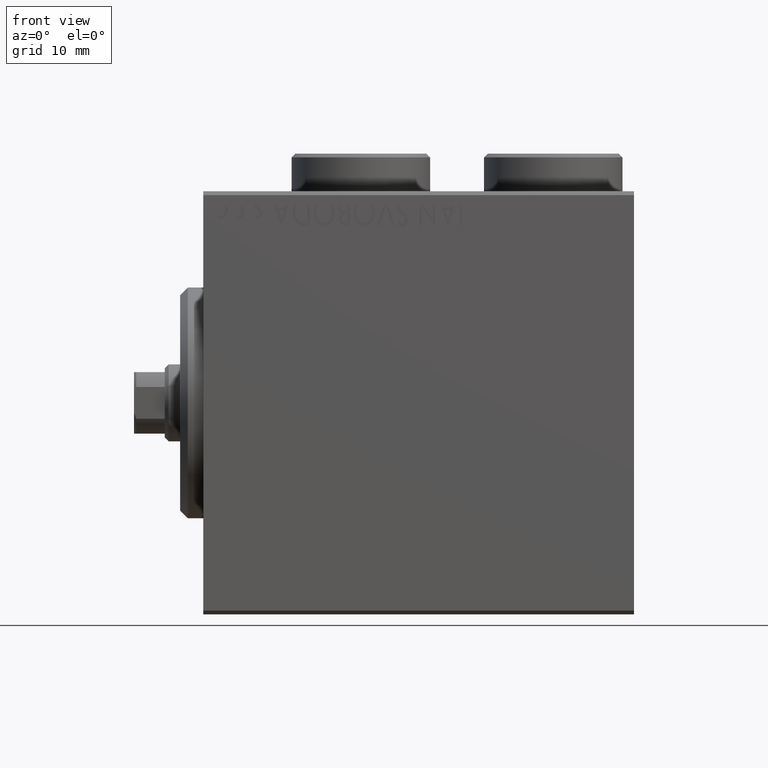
[diagram: clean part render]
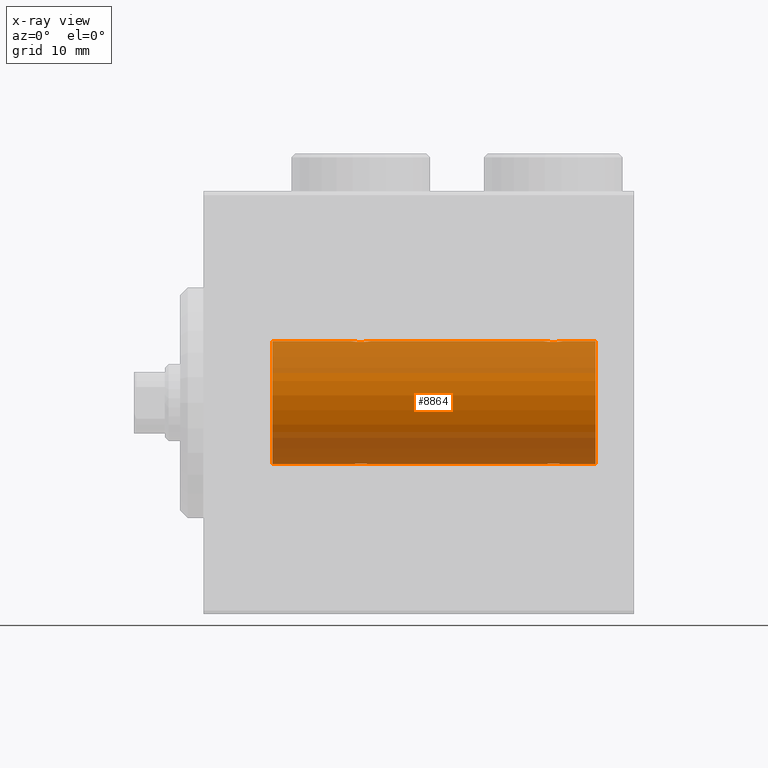
[diagram: x-ray — body ghosted, one internal face saturated and labeled with its STEP entity id]
A machine part, front view, then the same camera in x-ray: the body is ghosted and one INTERNAL B-rep face — a face not visible from any outside direction — is saturated and labeled: STEP entity #8864.
In plain terms, the highlighted cylindrical surface (partial cylindrical patch) has radius 8 mm, axis along (-1, -0, -0).
Its self-contained STEP definition (entity closure, byte-faithful):
#92 = CARTESIAN_POINT ( 'NONE',  ( 19.87056207267771413, -1.092287957405118970, -7.925333492638526600 ) ) ;
#417 = CARTESIAN_POINT ( 'NONE',  ( 44.87056207267771413, -1.092287957405121634, -7.925333492638528377 ) ) ;
#522 = VECTOR ( 'NONE', #37719, 1000.000000000000000 ) ;
#541 = CARTESIAN_POINT ( 'NONE',  ( 21.12714162834985387, -1.084361243153318721, -7.926301147147063908 ) ) ;
#576 = CARTESIAN_POINT ( 'NONE',  ( 46.75000000000000000, 2.184524186358155277E-16, 7.999999999999998224 ) ) ;
#588 = VERTEX_POINT ( 'NONE', #28405 ) ;
#617 = DIRECTION ( 'NONE',  ( 0.000000000000000000, 0.000000000000000000, 1.000000000000000000 ) ) ;
#774 = CARTESIAN_POINT ( 'NONE',  ( 21.75000000000000355, -0.1632520343443068511, -7.999999999999998224 ) ) ;
#1725 = CARTESIAN_POINT ( 'NONE',  ( 21.49841755665748622, -0.7695044314719065026, 7.963745725343518878 ) ) ;
#1793 = AXIS2_PLACEMENT_3D ( 'NONE', #39052, #32373, #617 ) ;
#1833 = ORIENTED_EDGE ( 'NONE', *, *, #44287, .F. ) ;
#2138 = CARTESIAN_POINT ( 'NONE',  ( 44.28284287980513056, -0.3279446529214851691, 7.994696267489722175 ) ) ;
#2713 = CARTESIAN_POINT ( 'NONE',  ( 21.75000000000000355, 9.797173987965608855E-16, -7.999999999999998224 ) ) ;
#2935 = VERTEX_POINT ( 'NONE', #21079 ) ;
#3215 = CARTESIAN_POINT ( 'NONE',  ( 51.00000000000000711, 9.797174393178823685E-16, -7.999999999999998224 ) ) ;
#3259 = CARTESIAN_POINT ( 'NONE',  ( 44.94455374345275800, -1.122809931695426311, 7.920878051565289901 ) ) ;
#3355 = AXIS2_PLACEMENT_3D ( 'NONE', #29902, #22999, #9650 ) ;
#3413 = VECTOR ( 'NONE', #39007, 1000.000000000000000 ) ;
#3454 = DIRECTION ( 'NONE',  ( 0.000000000000000000, 0.000000000000000000, 1.000000000000000000 ) ) ;
#3505 = EDGE_CURVE ( 'NONE', #23674, #41065, #41634, .T. ) ;
#3711 = CARTESIAN_POINT ( 'NONE',  ( 46.26815485876451817, -0.9994562523959094058, 7.938165420771274405 ) ) ;
#3791 = CARTESIAN_POINT ( 'NONE',  ( 51.00000000000000711, 0.000000000000000000, 7.999999999999998224 ) ) ;
#3932 = CARTESIAN_POINT ( 'NONE',  ( 46.49841755665749332, -0.7695044314719045042, 7.963745725343520654 ) ) ;
#4230 = CARTESIAN_POINT ( 'NONE',  ( 20.17298283628253230, -1.217515856520239970, -7.907063872927298398 ) ) ;
#4337 = CARTESIAN_POINT ( 'NONE',  ( 46.32687899779141816, -0.9409612394163474614, -7.944680966683013601 ) ) ;
#4497 = CARTESIAN_POINT ( 'NONE',  ( 19.40749082144729343, -0.6288424646912649241, 7.976670562295706368 ) ) ;
#5036 = EDGE_CURVE ( 'NONE', #10219, #12603, #17463, .T. ) ;
#6054 = EDGE_CURVE ( 'NONE', #7615, #10219, #13730, .T. ) ;
#6769 = CARTESIAN_POINT ( 'NONE',  ( 9.000000000000001776, 9.797174393178823685E-16, -7.999999999999998224 ) ) ;
#7003 = CARTESIAN_POINT ( 'NONE',  ( 21.26267005793691212, -0.9937204387496720859, -7.938174152191990629 ) ) ;
#7461 = CARTESIAN_POINT ( 'NONE',  ( 20.82830666114114848, -1.217212176555599434, -7.907113222863026536 ) ) ;
#7587 = CARTESIAN_POINT ( 'NONE',  ( 19.25000000000000000, -4.052102368803510290E-23, 7.999999999999998224 ) ) ;
#7615 = VERTEX_POINT ( 'NONE', #3215 ) ;
#7788 = CARTESIAN_POINT ( 'NONE',  ( 44.40834966532099060, -0.6303134207468006345, -7.976551562999471656 ) ) ;
#7883 = CARTESIAN_POINT ( 'NONE',  ( 51.00000000000000711, 9.797174393178823685E-16, -7.999999999999998224 ) ) ;
#8222 = CYLINDRICAL_SURFACE ( 'NONE', #1793, 7.999999999999998224 ) ;
#8688 = VERTEX_POINT ( 'NONE', #2713 ) ;
#8864 = ADVANCED_FACE ( 'NONE', ( #14867 ), #8222, .F. ) ;
#9424 = LINE ( 'NONE', #44858, #522 ) ;
#9650 = DIRECTION ( 'NONE',  ( 0.000000000000000000, 0.000000000000000000, 1.000000000000000000 ) ) ;
#10166 = CARTESIAN_POINT ( 'NONE',  ( 45.66440551148901505, -1.250104850332072859, 7.901723728054492746 ) ) ;
#10219 = VERTEX_POINT ( 'NONE', #17986 ) ;
#10328 = CARTESIAN_POINT ( 'NONE',  ( 46.75000000000000000, -0.1632520343443067401, -8.000000000000000000 ) ) ;
#11009 = CARTESIAN_POINT ( 'NONE',  ( 44.25000000000000711, -5.932357478216049125E-15, -7.999999999999998224 ) ) ;
#11133 = CARTESIAN_POINT ( 'NONE',  ( 21.32687899779140750, -0.9409612394163509030, -7.944680966683015377 ) ) ;
#11229 = CARTESIAN_POINT ( 'NONE',  ( 44.50158244334253510, -0.7695044314719126088, -7.963745725343517101 ) ) ;
#11408 = CARTESIAN_POINT ( 'NONE',  ( 19.94455374345276155, -1.122809931695431640, 7.920878051565288125 ) ) ;
#11494 = EDGE_CURVE ( 'NONE', #36284, #588, #34967, .T. ) ;
#12088 = CARTESIAN_POINT ( 'NONE',  ( 19.25000000000000355, -0.1632520343443080724, 8.000000000000000000 ) ) ;
#12603 = VERTEX_POINT ( 'NONE', #23411 ) ;
#12802 = ORIENTED_EDGE ( 'NONE', *, *, #3505, .T. ) ;
#12846 = VECTOR ( 'NONE', #14475, 1000.000000000000000 ) ;
#13730 = LINE ( 'NONE', #31450, #28903 ) ;
#13810 = DIRECTION ( 'NONE',  ( -1.000000000000000000, 0.000000000000000000, 0.000000000000000000 ) ) ;
#13898 = VECTOR ( 'NONE', #26041, 1000.000000000000000 ) ;
#13998 = CARTESIAN_POINT ( 'NONE',  ( 44.25000000000002132, -0.1654128203352934201, -7.999999999999998224 ) ) ;
#14058 = CARTESIAN_POINT ( 'NONE',  ( 46.71666607977186914, -0.3297258132310492140, 7.994620111903504522 ) ) ;
#14475 = DIRECTION ( 'NONE',  ( -1.000000000000000000, -0.000000000000000000, -0.000000000000000000 ) ) ;
#14682 = CARTESIAN_POINT ( 'NONE',  ( 45.66599605016010344, -1.249894643705221853, -7.901756981264364654 ) ) ;
#14737 = CARTESIAN_POINT ( 'NONE',  ( 51.00000000000000711, 0.000000000000000000, 7.999999999999998224 ) ) ;
#14804 = CARTESIAN_POINT ( 'NONE',  ( 19.73184514123549249, -0.9994562523959139577, -7.938165420771276182 ) ) ;
#14867 = FACE_OUTER_BOUND ( 'NONE', #28179, .T. ) ;
#14883 = VERTEX_POINT ( 'NONE', #18342 ) ;
#15310 = CARTESIAN_POINT ( 'NONE',  ( 19.28284287980512346, -0.3279446529214878892, 7.994696267489722175 ) ) ;
#15554 = EDGE_CURVE ( 'NONE', #12603, #8688, #9424, .T. ) ;
#16168 = CARTESIAN_POINT ( 'NONE',  ( 44.40749082144728277, -0.6288424646912613714, 7.976670562295706368 ) ) ;
#16385 = CARTESIAN_POINT ( 'NONE',  ( 44.50041313324088321, -0.7680324342712147034, 7.963892330120037499 ) ) ;
#17108 = ORIENTED_EDGE ( 'NONE', *, *, #25711, .T. ) ;
#17226 = ORIENTED_EDGE ( 'NONE', *, *, #18204, .F. ) ;
#17279 = CARTESIAN_POINT ( 'NONE',  ( 45.33400394983990367, -1.249894643705215858, 7.901756981264366431 ) ) ;
#17463 = B_SPLINE_CURVE_WITH_KNOTS ( 'NONE', 3,
 ( #31263, #10328, #35864, #34950, #45315, #4337, #32173, #35400, #21363, #31942, #14682, #17895, #21134, #417, #31713, #11229, #7788, #45547, #13998, #11009 ),
 .UNSPECIFIED., .F., .F.,
 ( 4, 2, 2, 2, 2, 2, 2, 2, 2, 4 ),
 ( 0.003914068143704942625, 0.004403205918210042168, 0.004892343692715140843, 0.005136912579967698421, 0.005381481467220255999, 0.005870619241725370287, 0.006359757016230484575, 0.006848894790735598863, 0.007338032565240713151, 0.007827170339745828306 ),
 .UNSPECIFIED. ) ;
#17629 = VERTEX_POINT ( 'NONE', #7587 ) ;
#17723 = LINE ( 'NONE', #14737, #25565 ) ;
#17732 = CARTESIAN_POINT ( 'NONE',  ( 46.59165033467900230, -0.6303134207467945282, 7.976551562999473433 ) ) ;
#17895 = CARTESIAN_POINT ( 'NONE',  ( 45.33559448851095652, -1.250104850332078854, -7.901723728054487417 ) ) ;
#17986 = CARTESIAN_POINT ( 'NONE',  ( 46.74999999999999289, 9.797173987957720246E-16, -7.999999999999998224 ) ) ;
#18023 = CARTESIAN_POINT ( 'NONE',  ( 21.59250917855271013, -0.6288424646912625926, -7.976670562295708145 ) ) ;
#18204 = EDGE_CURVE ( 'NONE', #17629, #588, #35327, .T. ) ;
#18342 = CARTESIAN_POINT ( 'NONE',  ( 19.25000000000000711, -3.107364149877583097E-15, -7.999999999999998224 ) ) ;
#18390 = CARTESIAN_POINT ( 'NONE',  ( 51.00000000000000711, 0.000000000000000000, 7.999999999999998224 ) ) ;
#18523 = CARTESIAN_POINT ( 'NONE',  ( 19.50041313324087611, -0.7680324342712183672, 7.963892330120039276 ) ) ;
#18761 = CARTESIAN_POINT ( 'NONE',  ( 20.66440551148902571, -1.250104850332075523, 7.901723728054487417 ) ) ;
#19219 = CARTESIAN_POINT ( 'NONE',  ( 21.12943792732229298, -1.092287957405117194, 7.925333492638531929 ) ) ;
#19759 = CIRCLE ( 'NONE', #45485, 7.999999999999998224 ) ;
#20053 = B_SPLINE_CURVE_WITH_KNOTS ( 'NONE', 3,
 ( #43846, #12088, #15310, #4497, #18523, #22685, #29107, #39941, #11408, #29568, #25422, #18761, #40173, #19219, #36735, #1725, #32804, #32569, #28874, #25194 ),
 .UNSPECIFIED., .F., .F.,
 ( 4, 2, 2, 2, 2, 2, 2, 2, 2, 4 ),
 ( 0.003914068143704968646, 0.004403205918210080332, 0.004892343692715191150, 0.005136912579967747861, 0.005381481467220303704, 0.005870619241725416257, 0.006359757016230527943, 0.006848894790735639629, 0.007338032565240751315, 0.007827170339745863001 ),
 .UNSPECIFIED. ) ;
#20130 = ORIENTED_EDGE ( 'NONE', *, *, #24739, .F. ) ;
#20239 = CARTESIAN_POINT ( 'NONE',  ( 44.25000000000000000, -4.052102368803510290E-23, 7.999999999999998224 ) ) ;
#20642 = VERTEX_POINT ( 'NONE', #34137 ) ;
#20941 = CARTESIAN_POINT ( 'NONE',  ( 51.00000000000000711, 0.000000000000000000, 0.000000000000000000 ) ) ;
#21031 = CARTESIAN_POINT ( 'NONE',  ( 21.75000000000000355, 9.797173987965608855E-16, -7.999999999999998224 ) ) ;
#21079 = CARTESIAN_POINT ( 'NONE',  ( 21.75000000000000355, -5.238855365914187376E-16, 7.999999999999998224 ) ) ;
#21134 = CARTESIAN_POINT ( 'NONE',  ( 45.17298283628253586, -1.217515856520241968, -7.907063872927295733 ) ) ;
#21363 = CARTESIAN_POINT ( 'NONE',  ( 46.05544625654727042, -1.122809931695432972, -7.920878051565292566 ) ) ;
#22685 = CARTESIAN_POINT ( 'NONE',  ( 19.67312100220859605, -0.9409612394163516802, 7.944680966683013601 ) ) ;
#22999 = DIRECTION ( 'NONE',  ( -1.000000000000000000, 0.000000000000000000, 0.000000000000000000 ) ) ;
#23411 = CARTESIAN_POINT ( 'NONE',  ( 44.25000000000000711, -5.932357478216049125E-15, -7.999999999999998224 ) ) ;
#23674 = VERTEX_POINT ( 'NONE', #20239 ) ;
#24189 = ORIENTED_EDGE ( 'NONE', *, *, #11494, .T. ) ;
#24630 = DIRECTION ( 'NONE',  ( -1.000000000000000000, -0.000000000000000000, -0.000000000000000000 ) ) ;
#24739 = EDGE_CURVE ( 'NONE', #7615, #20642, #19759, .T. ) ;
#24936 = CARTESIAN_POINT ( 'NONE',  ( 19.40834966532100481, -0.6303134207467991912, -7.976551562999473433 ) ) ;
#25152 = CARTESIAN_POINT ( 'NONE',  ( 19.28333392022813797, -0.3297258132310537104, -7.994620111903500970 ) ) ;
#25194 = CARTESIAN_POINT ( 'NONE',  ( 21.75000000000000355, -5.238855365914187376E-16, 7.999999999999998224 ) ) ;
#25381 = CARTESIAN_POINT ( 'NONE',  ( 21.05544625654724200, -1.122809931695431640, -7.920878051565290789 ) ) ;
#25422 = CARTESIAN_POINT ( 'NONE',  ( 20.33400394983990722, -1.249894643705219410, 7.901756981264364654 ) ) ;
#25565 = VECTOR ( 'NONE', #24630, 1000.000000000000000 ) ;
#25711 = EDGE_CURVE ( 'NONE', #14883, #36284, #29030, .T. ) ;
#26041 = DIRECTION ( 'NONE',  ( -1.000000000000000000, -0.000000000000000000, -0.000000000000000000 ) ) ;
#26520 = CARTESIAN_POINT ( 'NONE',  ( 44.25000000000000000, -4.052102368803510290E-23, 7.999999999999998224 ) ) ;
#28082 = CARTESIAN_POINT ( 'NONE',  ( 46.75000000000000000, 2.184524186358155277E-16, 7.999999999999998224 ) ) ;
#28179 = EDGE_LOOP ( 'NONE', ( #20130, #34330, #36953, #38245, #30480, #17108, #24189, #17226, #42702, #28770, #12802, #1833 ) ) ;
#28405 = CARTESIAN_POINT ( 'NONE',  ( 9.000000000000001776, 0.000000000000000000, 7.999999999999998224 ) ) ;
#28770 = ORIENTED_EDGE ( 'NONE', *, *, #31338, .F. ) ;
#28874 = CARTESIAN_POINT ( 'NONE',  ( 21.75000000000000711, -0.1654128203352884796, 8.000000000000001776 ) ) ;
#28903 = VECTOR ( 'NONE', #45509, 1000.000000000000000 ) ;
#29030 = LINE ( 'NONE', #7883, #13898 ) ;
#29107 = CARTESIAN_POINT ( 'NONE',  ( 19.73732994206309499, -0.9937204387496718638, 7.938174152191987076 ) ) ;
#29568 = CARTESIAN_POINT ( 'NONE',  ( 20.17169333885885862, -1.217212176555599878, 7.907113222863031865 ) ) ;
#29902 = CARTESIAN_POINT ( 'NONE',  ( 9.000000000000001776, 0.000000000000000000, 0.000000000000000000 ) ) ;
#30480 = ORIENTED_EDGE ( 'NONE', *, *, #37464, .T. ) ;
#31263 = CARTESIAN_POINT ( 'NONE',  ( 46.74999999999999289, 9.797173987957720246E-16, -7.999999999999998224 ) ) ;
#31338 = EDGE_CURVE ( 'NONE', #23674, #2935, #40031, .T. ) ;
#31450 = CARTESIAN_POINT ( 'NONE',  ( 51.00000000000000711, 9.797174393178823685E-16, -7.999999999999998224 ) ) ;
#31619 = CARTESIAN_POINT ( 'NONE',  ( 21.49958686675913810, -0.7680324342712174790, -7.963892330120039276 ) ) ;
#31713 = CARTESIAN_POINT ( 'NONE',  ( 44.73184514123551025, -0.9994562523959168443, -7.938165420771277958 ) ) ;
#31776 = CARTESIAN_POINT ( 'NONE',  ( 44.73732994206308433, -0.9937204387496696434, 7.938174152191987076 ) ) ;
#31942 = CARTESIAN_POINT ( 'NONE',  ( 45.82830666114114848, -1.217212176555600989, -7.907113222863030089 ) ) ;
#32173 = CARTESIAN_POINT ( 'NONE',  ( 46.26267005793690146, -0.9937204387496705316, -7.938174152191988853 ) ) ;
#32373 = DIRECTION ( 'NONE',  ( -1.000000000000000000, -0.000000000000000000, -0.000000000000000000 ) ) ;
#32569 = CARTESIAN_POINT ( 'NONE',  ( 21.71666607977186914, -0.3297258132310516010, 7.994620111903504522 ) ) ;
#32804 = CARTESIAN_POINT ( 'NONE',  ( 21.59165033467900940, -0.6303134207467971928, 7.976551562999473433 ) ) ;
#33668 = CARTESIAN_POINT ( 'NONE',  ( 44.25000000000000000, -0.1632520343443069621, 8.000000000000000000 ) ) ;
#34137 = CARTESIAN_POINT ( 'NONE',  ( 51.00000000000000711, 0.000000000000000000, 7.999999999999998224 ) ) ;
#34330 = ORIENTED_EDGE ( 'NONE', *, *, #6054, .T. ) ;
#34570 = CARTESIAN_POINT ( 'NONE',  ( 44.67312100220858184, -0.9409612394163470173, 7.944680966683011825 ) ) ;
#34950 = CARTESIAN_POINT ( 'NONE',  ( 46.59250917855270302, -0.6288424646912637028, -7.976670562295706368 ) ) ;
#34967 = CIRCLE ( 'NONE', #3355, 7.999999999999998224 ) ;
#35077 = CARTESIAN_POINT ( 'NONE',  ( 19.25000000000000711, -0.1654128203352910609, -7.999999999999998224 ) ) ;
#35327 = LINE ( 'NONE', #3791, #3413 ) ;
#35400 = CARTESIAN_POINT ( 'NONE',  ( 46.12714162834986098, -1.084361243153318943, -7.926301147147065684 ) ) ;
#35529 = CARTESIAN_POINT ( 'NONE',  ( 19.50158244334252089, -0.7695044314719098333, -7.963745725343515325 ) ) ;
#35759 = CARTESIAN_POINT ( 'NONE',  ( 20.33559448851098850, -1.250104850332076634, -7.901723728054487417 ) ) ;
#35864 = CARTESIAN_POINT ( 'NONE',  ( 46.71715712019487654, -0.3279446529214866679, -7.994696267489720398 ) ) ;
#36284 = VERTEX_POINT ( 'NONE', #6769 ) ;
#36735 = CARTESIAN_POINT ( 'NONE',  ( 21.26815485876451461, -0.9994562523959116263, 7.938165420771274405 ) ) ;
#36953 = ORIENTED_EDGE ( 'NONE', *, *, #5036, .T. ) ;
#37464 = EDGE_CURVE ( 'NONE', #8688, #14883, #44447, .T. ) ;
#37719 = DIRECTION ( 'NONE',  ( -1.000000000000000000, -0.000000000000000000, -0.000000000000000000 ) ) ;
#38245 = ORIENTED_EDGE ( 'NONE', *, *, #15554, .T. ) ;
#38524 = CARTESIAN_POINT ( 'NONE',  ( 21.71715712019488009, -0.3279446529214856687, -7.994696267489723951 ) ) ;
#39007 = DIRECTION ( 'NONE',  ( -1.000000000000000000, -0.000000000000000000, -0.000000000000000000 ) ) ;
#39052 = CARTESIAN_POINT ( 'NONE',  ( 51.00000000000000711, 0.000000000000000000, 0.000000000000000000 ) ) ;
#39208 = CARTESIAN_POINT ( 'NONE',  ( 19.25000000000000711, -3.107364149877583097E-15, -7.999999999999998224 ) ) ;
#39941 = CARTESIAN_POINT ( 'NONE',  ( 19.87285837165014613, -1.084361243153319387, 7.926301147147063908 ) ) ;
#40031 = LINE ( 'NONE', #18390, #12846 ) ;
#40173 = CARTESIAN_POINT ( 'NONE',  ( 20.82701716371747480, -1.217515856520238637, 7.907063872927298398 ) ) ;
#41065 = VERTEX_POINT ( 'NONE', #576 ) ;
#41634 = B_SPLINE_CURVE_WITH_KNOTS ( 'NONE', 3,
 ( #26520, #33668, #2138, #16168, #16385, #34570, #31776, #42143, #3259, #41918, #17279, #10166, #41690, #45152, #3711, #3932, #17732, #14058, #42380, #28082 ),
 .UNSPECIFIED., .F., .F.,
 ( 4, 2, 2, 2, 2, 2, 2, 2, 2, 4 ),
 ( 0.003914068143704962574, 0.004403205918210084668, 0.004892343692715206763, 0.005136912579967760871, 0.005381481467220314979, 0.005870619241725421461, 0.006359757016230529678, 0.006848894790735636159, 0.007338032565240744376, 0.007827170339745850858 ),
 .UNSPECIFIED. ) ;
#41681 = EDGE_CURVE ( 'NONE', #17629, #2935, #20053, .T. ) ;
#41690 = CARTESIAN_POINT ( 'NONE',  ( 45.82701716371747125, -1.217515856520235973, 7.907063872927300174 ) ) ;
#41918 = CARTESIAN_POINT ( 'NONE',  ( 45.17169333885885152, -1.217212176555594771, 7.907113222863028312 ) ) ;
#42143 = CARTESIAN_POINT ( 'NONE',  ( 44.87285837165013902, -1.084361243153316945, 7.926301147147065684 ) ) ;
#42380 = CARTESIAN_POINT ( 'NONE',  ( 46.75000000000000711, -0.1654128203352883963, 7.999999999999996447 ) ) ;
#42673 = CARTESIAN_POINT ( 'NONE',  ( 20.66599605016009988, -1.249894643705219854, -7.901756981264366431 ) ) ;
#42702 = ORIENTED_EDGE ( 'NONE', *, *, #41681, .T. ) ;
#43846 = CARTESIAN_POINT ( 'NONE',  ( 19.25000000000000000, -4.052102368803510290E-23, 7.999999999999998224 ) ) ;
#44287 = EDGE_CURVE ( 'NONE', #20642, #41065, #17723, .T. ) ;
#44447 = B_SPLINE_CURVE_WITH_KNOTS ( 'NONE', 3,
 ( #21031, #774, #38524, #18023, #31619, #11133, #7003, #541, #25381, #7461, #42673, #35759, #4230, #92, #14804, #35529, #24936, #25152, #35077, #39208 ),
 .UNSPECIFIED., .F., .F.,
 ( 4, 2, 2, 2, 2, 2, 2, 2, 2, 4 ),
 ( 0.003914068143704951298, 0.004403205918210062117, 0.004892343692715172936, 0.005136912579967725309, 0.005381481467220276815, 0.005870619241725390236, 0.006359757016230503657, 0.006848894790735617077, 0.007338032565240730498, 0.007827170339745843919 ),
 .UNSPECIFIED. ) ;
#44858 = CARTESIAN_POINT ( 'NONE',  ( 51.00000000000000711, 9.797174393178823685E-16, -7.999999999999998224 ) ) ;
#45152 = CARTESIAN_POINT ( 'NONE',  ( 46.12943792732229298, -1.092287957405115639, 7.925333492638530153 ) ) ;
#45315 = CARTESIAN_POINT ( 'NONE',  ( 46.49958686675912389, -0.7680324342712128161, -7.963892330120035723 ) ) ;
#45485 = AXIS2_PLACEMENT_3D ( 'NONE', #20941, #13810, #3454 ) ;
#45509 = DIRECTION ( 'NONE',  ( -1.000000000000000000, -0.000000000000000000, -0.000000000000000000 ) ) ;
#45547 = CARTESIAN_POINT ( 'NONE',  ( 44.28333392022813797, -0.3297258132310548762, -7.994620111903502746 ) ) ;